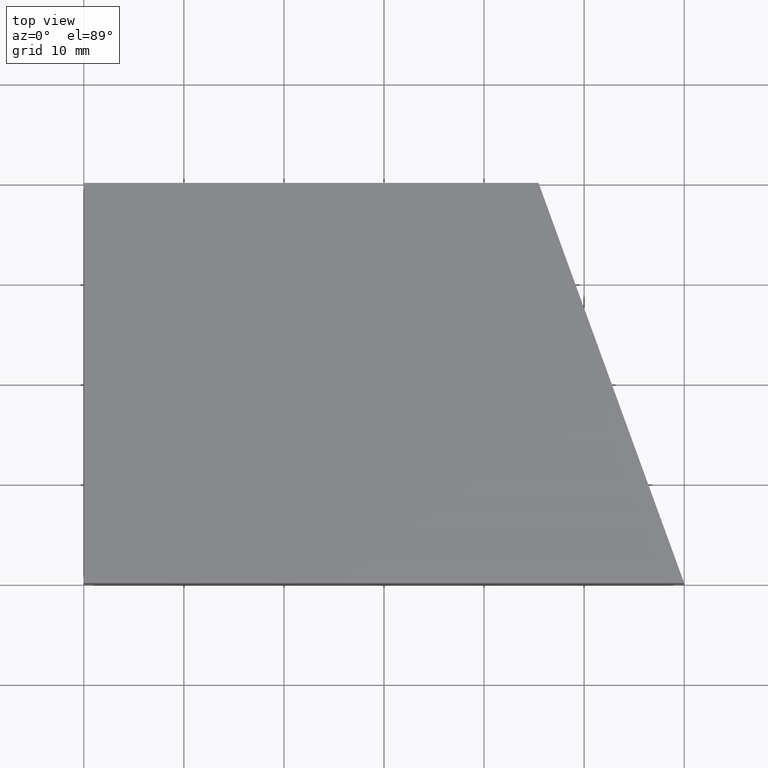
[diagram: clean part render]
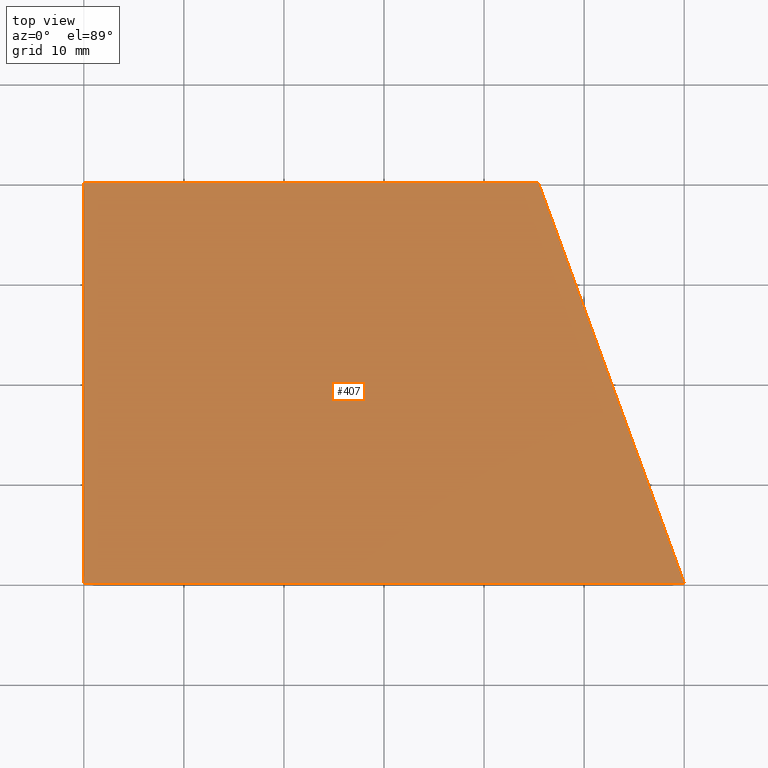
[diagram: same view with one face highlighted and labeled with its STEP entity id]
A machine part, top view. The second image highlights one B-rep face of the part: STEP entity #407.
In plain terms, the highlighted planar face has unit normal (0, 0, -1).
Its self-contained STEP definition (entity closure, byte-faithful):
#45 = EDGE_CURVE ( 'NONE', #482, #491, #261, .T. ) ;
#47 = ORIENTED_EDGE ( 'NONE', *, *, #45, .T. ) ;
#51 = DIRECTION ( 'NONE',  ( -1.000000000000000000, 0.0000000000000000000, -0.0000000000000000000 ) ) ;
#78 = CARTESIAN_POINT ( 'NONE',  ( 0.0000000000000000000, 40.00000000000000000, 6.000000000000000000 ) ) ;
#81 = EDGE_CURVE ( 'NONE', #491, #466, #220, .T. ) ;
#107 = CARTESIAN_POINT ( 'NONE',  ( 45.44119062935171600, 40.00000000000000000, 6.000000000000000000 ) ) ;
#113 = EDGE_CURVE ( 'NONE', #436, #482, #228, .T. ) ;
#115 = AXIS2_PLACEMENT_3D ( 'NONE', #458, #305, #51 ) ;
#121 = CARTESIAN_POINT ( 'NONE',  ( 45.44119062935171600, 40.00000000000000000, 6.000000000000000000 ) ) ;
#123 = CARTESIAN_POINT ( 'NONE',  ( 0.0000000000000000000, 0.0000000000000000000, 6.000000000000000000 ) ) ;
#138 = VECTOR ( 'NONE', #214, 1000.000000000000000 ) ;
#139 = LINE ( 'NONE', #224, #138 ) ;
#174 = FACE_OUTER_BOUND ( 'NONE', #426, .T. ) ;
#214 = DIRECTION ( 'NONE',  ( 1.000000000000000000, -1.161219106975661900E-017, -0.0000000000000000000 ) ) ;
#215 = VECTOR ( 'NONE', #344, 1000.000000000000200 ) ;
#220 = LINE ( 'NONE', #388, #236 ) ;
#224 = CARTESIAN_POINT ( 'NONE',  ( 60.00000000000000000, -6.967314641853971000E-016, 6.000000000000000000 ) ) ;
#228 = LINE ( 'NONE', #121, #215 ) ;
#236 = VECTOR ( 'NONE', #511, 1000.000000000000000 ) ;
#250 = VECTOR ( 'NONE', #306, 1000.000000000000000 ) ;
#261 = LINE ( 'NONE', #411, #250 ) ;
#303 = PLANE ( 'NONE',  #115 ) ;
#305 = DIRECTION ( 'NONE',  ( 0.0000000000000000000, 0.0000000000000000000, -1.000000000000000000 ) ) ;
#306 = DIRECTION ( 'NONE',  ( -1.000000000000000000, -0.0000000000000000000, -0.0000000000000000000 ) ) ;
#344 = DIRECTION ( 'NONE',  ( -0.3420201433256726000, 0.9396926207859068700, -0.0000000000000000000 ) ) ;
#383 = CARTESIAN_POINT ( 'NONE',  ( 60.00000000000000000, -6.967314641853971000E-016, 6.000000000000000000 ) ) ;
#388 = CARTESIAN_POINT ( 'NONE',  ( 0.0000000000000000000, 0.0000000000000000000, 6.000000000000000000 ) ) ;
#407 = ADVANCED_FACE ( 'NONE', ( #174 ), #303, .F. ) ;
#411 = CARTESIAN_POINT ( 'NONE',  ( 0.0000000000000000000, 40.00000000000000000, 6.000000000000000000 ) ) ;
#424 = ORIENTED_EDGE ( 'NONE', *, *, #439, .T. ) ;
#426 = EDGE_LOOP ( 'NONE', ( #424, #479, #47, #431 ) ) ;
#431 = ORIENTED_EDGE ( 'NONE', *, *, #81, .T. ) ;
#436 = VERTEX_POINT ( 'NONE', #383 ) ;
#439 = EDGE_CURVE ( 'NONE', #466, #436, #139, .T. ) ;
#458 = CARTESIAN_POINT ( 'NONE',  ( 0.0000000000000000000, 0.0000000000000000000, 6.000000000000000000 ) ) ;
#466 = VERTEX_POINT ( 'NONE', #123 ) ;
#479 = ORIENTED_EDGE ( 'NONE', *, *, #113, .T. ) ;
#482 = VERTEX_POINT ( 'NONE', #107 ) ;
#491 = VERTEX_POINT ( 'NONE', #78 ) ;
#511 = DIRECTION ( 'NONE',  ( -0.0000000000000000000, -1.000000000000000000, -0.0000000000000000000 ) ) ;